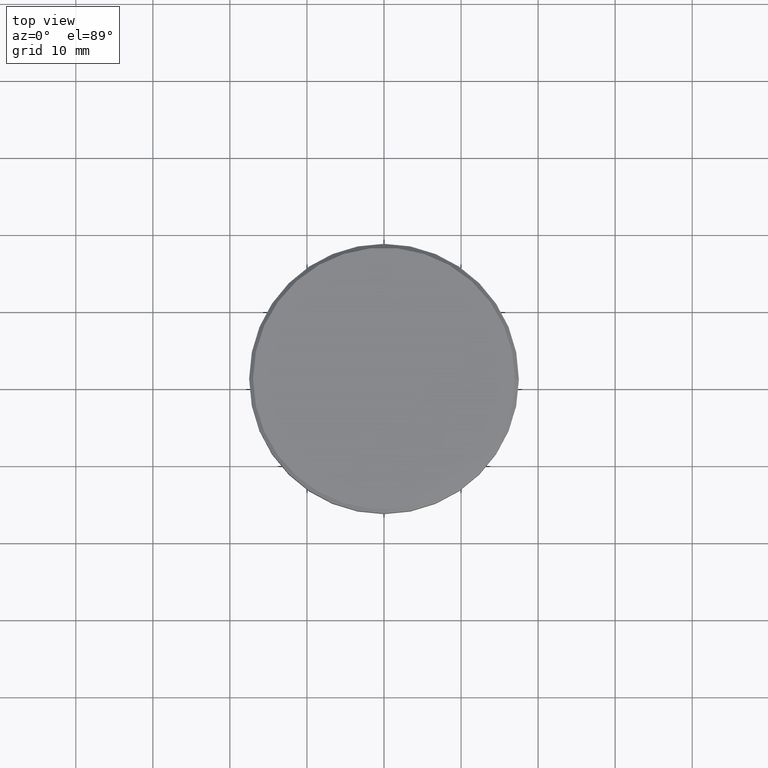
[diagram: clean part render]
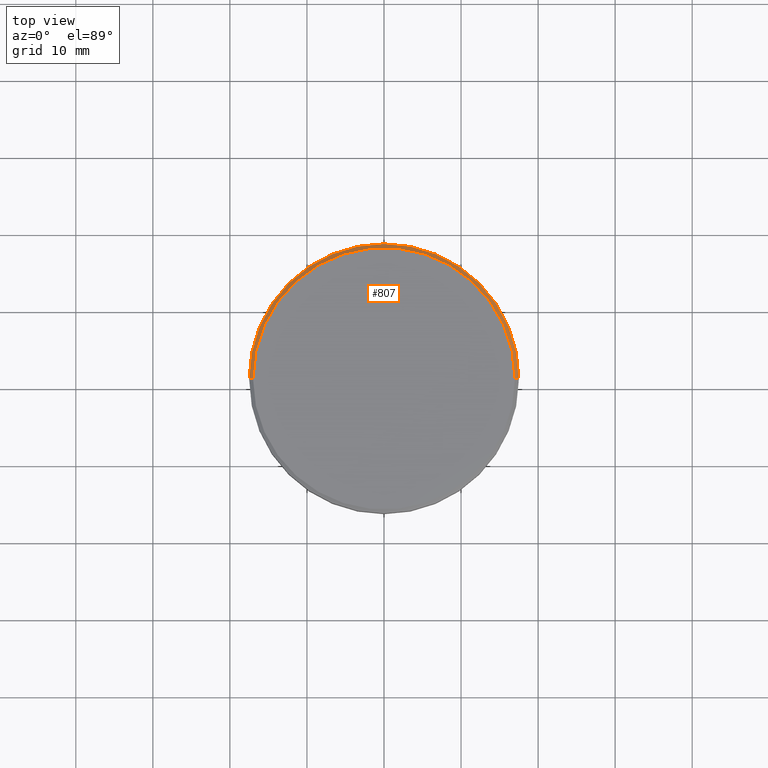
[diagram: same view with one face highlighted and labeled with its STEP entity id]
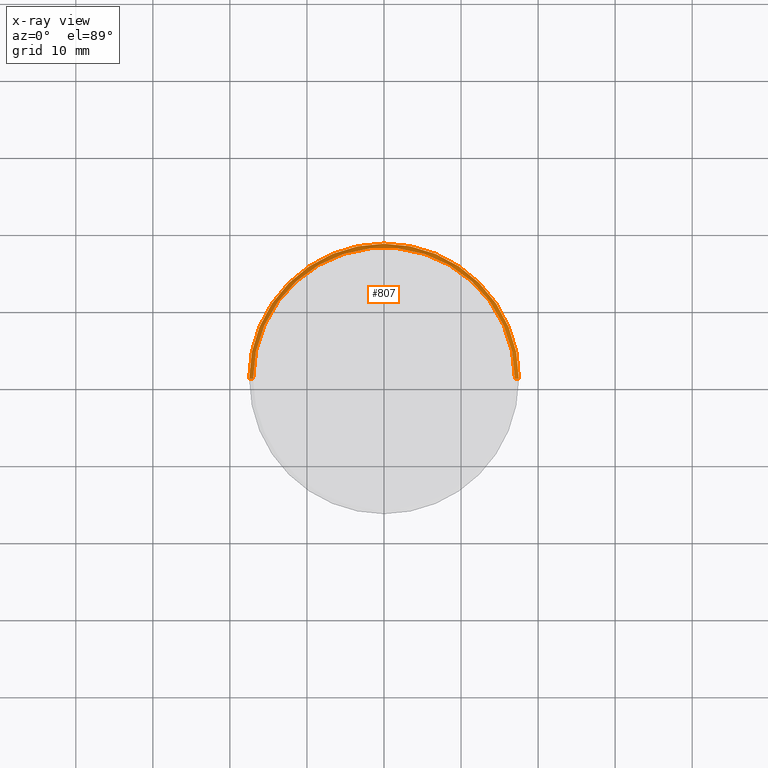
[diagram: x-ray of the same camera — body ghosted, the highlighted face saturated]
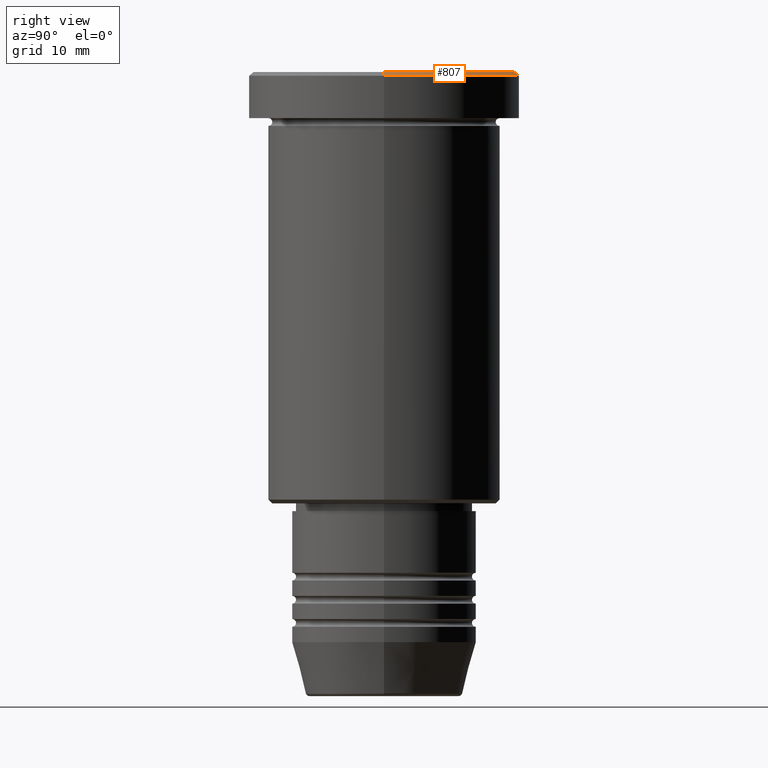
[diagram: same view with one face highlighted and labeled with its STEP entity id]
A machine part, top view. The second image highlights one B-rep face of the part: STEP entity #807.
The next image is the same camera in x-ray: the body ghosted, the highlighted face saturated — about 0% of this face is hidden behind the body in this view.
A second angle (right view) of the same face is appended — the face is thin or edge-on in the first view.
In plain terms, the highlighted conical surface has half-angle 45 deg.
Its self-contained STEP definition (entity closure, byte-faithful):
#22 = EDGE_CURVE ( 'NONE', #370, #1044, #767, .T. ) ;
#38 = ORIENTED_EDGE ( 'NONE', *, *, #323, .F. ) ;
#58 = DIRECTION ( 'NONE',  ( -0.7071067811865378028, 0.000000000000000000, -0.7071067811865573427 ) ) ;
#77 = VERTEX_POINT ( 'NONE', #1181 ) ;
#91 = CARTESIAN_POINT ( 'NONE',  ( 17.00000000000000000, 2.112515728529184067E-15, 0.000000000000000000 ) ) ;
#185 = DIRECTION ( 'NONE',  ( -1.000000000000000000, 0.000000000000000000, 0.000000000000000000 ) ) ;
#201 = CARTESIAN_POINT ( 'NONE',  ( 0.000000000000000000, 0.000000000000000000, 0.000000000000000000 ) ) ;
#323 = EDGE_CURVE ( 'NONE', #370, #1096, #1173, .T. ) ;
#355 = FACE_OUTER_BOUND ( 'NONE', #994, .T. ) ;
#370 = VERTEX_POINT ( 'NONE', #91 ) ;
#420 = AXIS2_PLACEMENT_3D ( 'NONE', #201, #1118, #498 ) ;
#428 = CARTESIAN_POINT ( 'NONE',  ( -17.00000000000000000, 0.000000000000000000, 0.000000000000000000 ) ) ;
#471 = DIRECTION ( 'NONE',  ( 0.7071067811865378028, 8.659560562354814529E-17, -0.7071067811865573427 ) ) ;
#498 = DIRECTION ( 'NONE',  ( 1.000000000000000000, 0.000000000000000000, 0.000000000000000000 ) ) ;
#554 = CARTESIAN_POINT ( 'NONE',  ( 0.000000000000000000, 0.000000000000000000, 0.000000000000000000 ) ) ;
#562 = ORIENTED_EDGE ( 'NONE', *, *, #1015, .F. ) ;
#563 = EDGE_CURVE ( 'NONE', #77, #1044, #985, .T. ) ;
#602 = LINE ( 'NONE', #428, #831 ) ;
#642 = AXIS2_PLACEMENT_3D ( 'NONE', #792, #718, #1057 ) ;
#688 = VECTOR ( 'NONE', #471, 1000.000000000000000 ) ;
#718 = DIRECTION ( 'NONE',  ( 0.000000000000000000, 0.000000000000000000, -1.000000000000000000 ) ) ;
#767 = LINE ( 'NONE', #997, #688 ) ;
#792 = CARTESIAN_POINT ( 'NONE',  ( 0.000000000000000000, 0.000000000000000000, -0.5000000000000142109 ) ) ;
#807 = ADVANCED_FACE ( 'NONE', ( #355 ), #964, .T. ) ;
#811 = AXIS2_PLACEMENT_3D ( 'NONE', #554, #1080, #185 ) ;
#831 = VECTOR ( 'NONE', #58, 1000.000000000000000 ) ;
#872 = ORIENTED_EDGE ( 'NONE', *, *, #22, .T. ) ;
#940 = CARTESIAN_POINT ( 'NONE',  ( 17.50000000000000000, 0.000000000000000000, -0.5000000000000142109 ) ) ;
#956 = CARTESIAN_POINT ( 'NONE',  ( -17.00000000000000000, 0.000000000000000000, 0.000000000000000000 ) ) ;
#964 = CONICAL_SURFACE ( 'NONE', #811, 17.00000000000000000, 0.7853981633974346233 ) ;
#985 = CIRCLE ( 'NONE', #642, 17.50000000000000000 ) ;
#994 = EDGE_LOOP ( 'NONE', ( #38, #872, #1039, #562 ) ) ;
#997 = CARTESIAN_POINT ( 'NONE',  ( 17.00000000000000000, 2.081899558550500280E-15, 0.000000000000000000 ) ) ;
#1015 = EDGE_CURVE ( 'NONE', #1096, #77, #602, .T. ) ;
#1039 = ORIENTED_EDGE ( 'NONE', *, *, #563, .F. ) ;
#1044 = VERTEX_POINT ( 'NONE', #940 ) ;
#1057 = DIRECTION ( 'NONE',  ( 1.000000000000000000, 0.000000000000000000, 0.000000000000000000 ) ) ;
#1080 = DIRECTION ( 'NONE',  ( 0.000000000000000000, 0.000000000000000000, -1.000000000000000000 ) ) ;
#1096 = VERTEX_POINT ( 'NONE', #956 ) ;
#1118 = DIRECTION ( 'NONE',  ( -0.000000000000000000, -0.000000000000000000, 1.000000000000000000 ) ) ;
#1173 = CIRCLE ( 'NONE', #420, 17.00000000000000000 ) ;
#1181 = CARTESIAN_POINT ( 'NONE',  ( -17.50000000000000000, 2.143131898507868248E-15, -0.5000000000000142109 ) ) ;